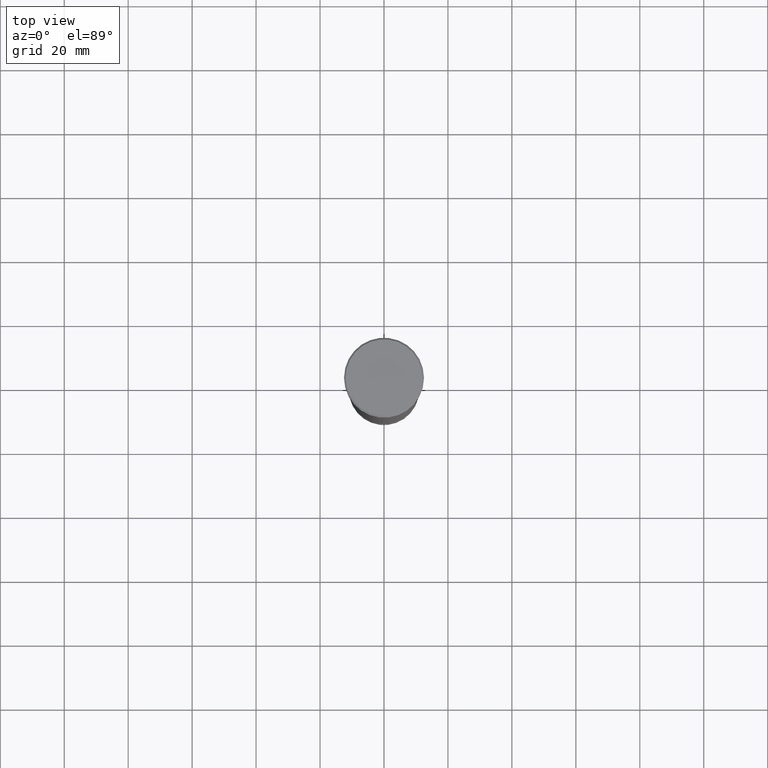
[diagram: clean part render]
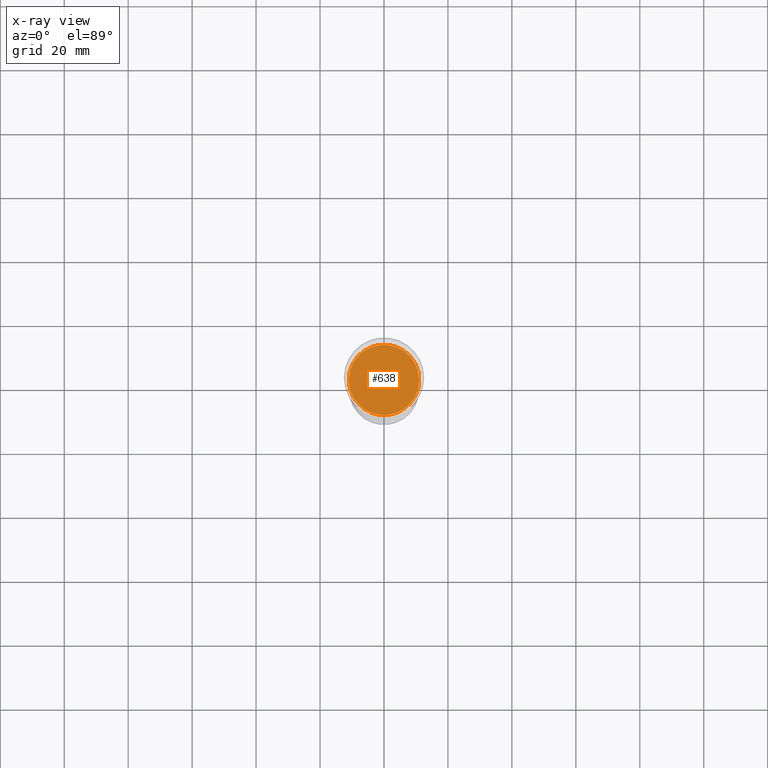
[diagram: x-ray — body ghosted, one internal face saturated and labeled with its STEP entity id]
A machine part, top view, then the same camera in x-ray: the body is ghosted and one INTERNAL B-rep face — a face not visible from any outside direction — is saturated and labeled: STEP entity #638.
In plain terms, the highlighted planar face has unit normal (0, 0, -1).
Its self-contained STEP definition (entity closure, byte-faithful):
#24 = ORIENTED_EDGE ( 'NONE', *, *, #454, .T. ) ;
#31 = CARTESIAN_POINT ( 'NONE',  ( 0.000000000000000000, 0.000000000000000000, -41.99999999999999289 ) ) ;
#100 = EDGE_LOOP ( 'NONE', ( #24, #579 ) ) ;
#128 = EDGE_CURVE ( 'NONE', #1051, #375, #1070, .T. ) ;
#195 = AXIS2_PLACEMENT_3D ( 'NONE', #31, #1096, #596 ) ;
#229 = DIRECTION ( 'NONE',  ( 1.000000000000000000, 0.000000000000000000, 0.000000000000000000 ) ) ;
#287 = CARTESIAN_POINT ( 'NONE',  ( 11.00000000000000000, 0.000000000000000000, -41.99999999999999289 ) ) ;
#290 = AXIS2_PLACEMENT_3D ( 'NONE', #1031, #684, #229 ) ;
#308 = AXIS2_PLACEMENT_3D ( 'NONE', #979, #700, #533 ) ;
#375 = VERTEX_POINT ( 'NONE', #287 ) ;
#454 = EDGE_CURVE ( 'NONE', #375, #1051, #962, .T. ) ;
#533 = DIRECTION ( 'NONE',  ( -1.000000000000000000, 0.000000000000000000, -0.000000000000000000 ) ) ;
#579 = ORIENTED_EDGE ( 'NONE', *, *, #128, .T. ) ;
#596 = DIRECTION ( 'NONE',  ( 1.000000000000000000, 0.000000000000000000, 0.000000000000000000 ) ) ;
#618 = FACE_OUTER_BOUND ( 'NONE', #100, .T. ) ;
#638 = ADVANCED_FACE ( 'NONE', ( #618 ), #989, .F. ) ;
#684 = DIRECTION ( 'NONE',  ( -0.000000000000000000, -0.000000000000000000, 1.000000000000000000 ) ) ;
#697 = CARTESIAN_POINT ( 'NONE',  ( -10.99999999999999822, 1.347111479062088405E-15, -41.99999999999999289 ) ) ;
#700 = DIRECTION ( 'NONE',  ( 0.000000000000000000, 0.000000000000000000, -1.000000000000000000 ) ) ;
#962 = CIRCLE ( 'NONE', #195, 11.00000000000000000 ) ;
#979 = CARTESIAN_POINT ( 'NONE',  ( 0.000000000000000000, 0.000000000000000000, -41.99999999999999289 ) ) ;
#989 = PLANE ( 'NONE',  #308 ) ;
#1031 = CARTESIAN_POINT ( 'NONE',  ( 0.000000000000000000, 0.000000000000000000, -41.99999999999999289 ) ) ;
#1051 = VERTEX_POINT ( 'NONE', #697 ) ;
#1070 = CIRCLE ( 'NONE', #290, 11.00000000000000000 ) ;
#1096 = DIRECTION ( 'NONE',  ( -0.000000000000000000, -0.000000000000000000, 1.000000000000000000 ) ) ;